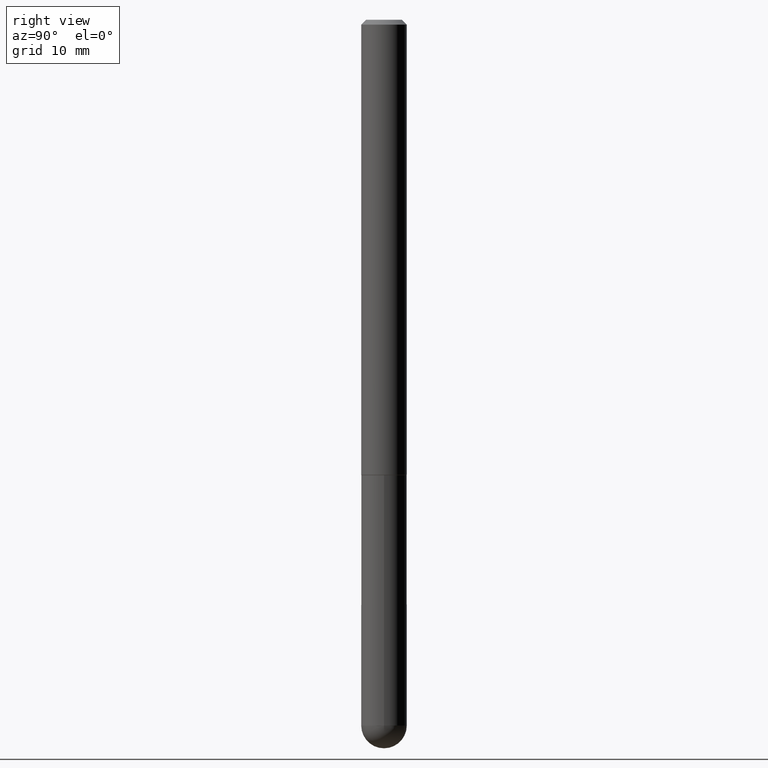
[diagram: clean part render]
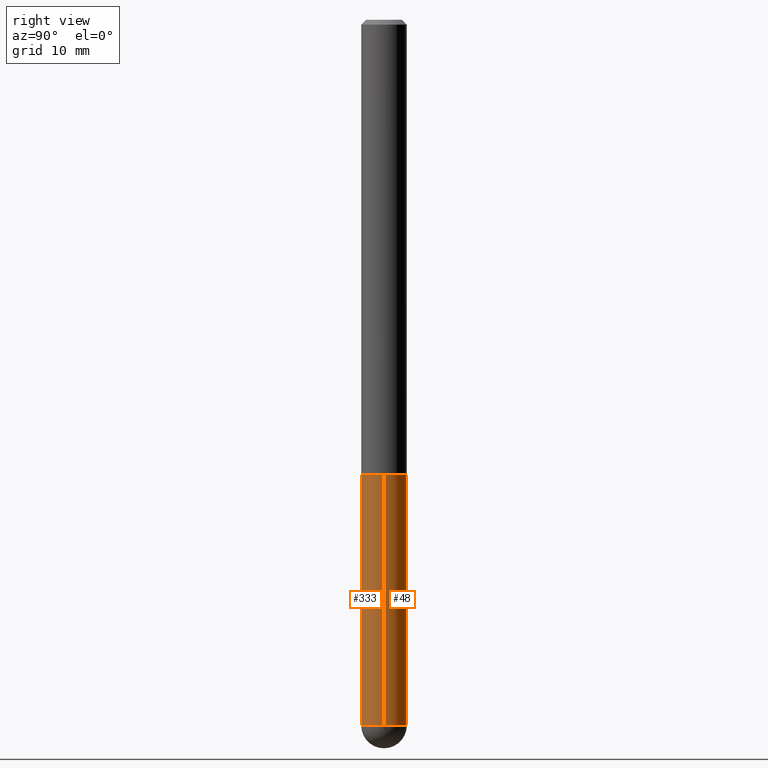
[diagram: same view with one multi-face feature highlighted, each face labeled with its STEP entity id]
A machine part, right view. The highlighted faces form ONE feature: a constant-radius fillet chain: 2 tangent blend faces with common blend radius 2.3812 mm. The faces share edges in the B-rep.
Their STEP definitions:
[1] entity #48 (Cylinder):
#6 = ORIENTED_EDGE ( 'NONE', *, *, #217, .F. ) ;
#9 = ORIENTED_EDGE ( 'NONE', *, *, #269, .T. ) ;
#15 = CARTESIAN_POINT ( 'NONE',  ( 4.585254011597131119E-29, -6.546527510330898707E-15, -1.875000000000000000 ) ) ;
#20 = EDGE_CURVE ( 'NONE', #38, #144, #151, .T. ) ;
#35 = CARTESIAN_POINT ( 'NONE',  ( 7.107143717975553234E-29, -1.014711764101289221E-14, -2.906250000000000000 ) ) ;
#38 = VERTEX_POINT ( 'NONE', #351 ) ;
#48 = ADVANCED_FACE ( 'NONE', ( #141 ), #274, .T. ) ;
#81 = VERTEX_POINT ( 'NONE', #104 ) ;
#83 = CARTESIAN_POINT ( 'NONE',  ( -0.09374999999999998612, 6.661338147750938256E-16, -4.611501647113973295E-30 ) ) ;
#87 = ORIENTED_EDGE ( 'NONE', *, *, #20, .T. ) ;
#91 = VERTEX_POINT ( 'NONE', #288 ) ;
#94 = VECTOR ( 'NONE', #268, 39.37007874015748143 ) ;
#104 = CARTESIAN_POINT ( 'NONE',  ( -0.09375000000000001388, -7.680688760896801533E-15, -1.875000000000000000 ) ) ;
#122 = ORIENTED_EDGE ( 'NONE', *, *, #368, .F. ) ;
#132 = DIRECTION ( 'NONE',  ( 1.000000000000000000, -6.982962677686261189E-15, 0.000000000000000000 ) ) ;
#141 = FACE_OUTER_BOUND ( 'NONE', #310, .T. ) ;
#144 = VERTEX_POINT ( 'NONE', #328 ) ;
#151 = CIRCLE ( 'NONE', #330, 0.09374999999999998612 ) ;
#157 = CARTESIAN_POINT ( 'NONE',  ( 0.000000000000000000, 0.000000000000000000, 0.000000000000000000 ) ) ;
#164 = CIRCLE ( 'NONE', #331, 0.09374999999999998612 ) ;
#174 = DIRECTION ( 'NONE',  ( 1.000000000000000000, -6.982962677686263555E-15, 0.000000000000000000 ) ) ;
#177 = CARTESIAN_POINT ( 'NONE',  ( 7.107143717975553234E-29, -1.014711764101289221E-14, -2.906250000000000000 ) ) ;
#205 = VECTOR ( 'NONE', #208, 39.37007874015748143 ) ;
#206 = LINE ( 'NONE', #271, #94 ) ;
#208 = DIRECTION ( 'NONE',  ( -2.445468806185136877E-29, 3.491481338843145188E-15, 1.000000000000000000 ) ) ;
#211 = AXIS2_PLACEMENT_3D ( 'NONE', #15, #291, #132 ) ;
#212 = DIRECTION ( 'NONE',  ( -2.445468806185136597E-29, 3.491481338843145583E-15, 1.000000000000000000 ) ) ;
#217 = EDGE_CURVE ( 'NONE', #91, #81, #235, .T. ) ;
#223 = DIRECTION ( 'NONE',  ( -2.445468806185136597E-29, 3.491481338843145583E-15, 1.000000000000000000 ) ) ;
#235 = CIRCLE ( 'NONE', #211, 0.09375000000000001388 ) ;
#239 = CARTESIAN_POINT ( 'NONE',  ( 0.09374999999999998612, -9.001475326704983750E-15, -2.906250000000000000 ) ) ;
#240 = ORIENTED_EDGE ( 'NONE', *, *, #322, .T. ) ;
#258 = DIRECTION ( 'NONE',  ( 1.000000000000000000, -6.982962677686266711E-15, 4.876176775795935793E-29 ) ) ;
#268 = DIRECTION ( 'NONE',  ( -2.445468806185136877E-29, 3.491481338843145188E-15, 1.000000000000000000 ) ) ;
#269 = EDGE_CURVE ( 'NONE', #144, #81, #408, .T. ) ;
#271 = CARTESIAN_POINT ( 'NONE',  ( 0.09374999999999998612, -6.546527510330874055E-16, 4.571415727308689105E-30 ) ) ;
#274 = CYLINDRICAL_SURFACE ( 'NONE', #313, 0.09374999999999998612 ) ;
#278 = DIRECTION ( 'NONE',  ( -2.445468806185136597E-29, 3.491481338843145583E-15, 1.000000000000000000 ) ) ;
#285 = DIRECTION ( 'NONE',  ( 1.000000000000000000, -6.982962677686263555E-15, 0.000000000000000000 ) ) ;
#288 = CARTESIAN_POINT ( 'NONE',  ( 0.09375000000000001388, -7.201180261363985422E-15, -1.875000000000000000 ) ) ;
#291 = DIRECTION ( 'NONE',  ( -2.445468806185136597E-29, 3.491481338843145583E-15, 1.000000000000000000 ) ) ;
#295 = VERTEX_POINT ( 'NONE', #239 ) ;
#310 = EDGE_LOOP ( 'NONE', ( #87, #9, #6, #122, #240 ) ) ;
#313 = AXIS2_PLACEMENT_3D ( 'NONE', #157, #223, #258 ) ;
#322 = EDGE_CURVE ( 'NONE', #295, #38, #164, .T. ) ;
#328 = CARTESIAN_POINT ( 'NONE',  ( -0.09374999999999998612, -7.680688760896803110E-15, -2.906250000000000000 ) ) ;
#330 = AXIS2_PLACEMENT_3D ( 'NONE', #35, #278, #285 ) ;
#331 = AXIS2_PLACEMENT_3D ( 'NONE', #177, #212, #174 ) ;
#351 = CARTESIAN_POINT ( 'NONE',  ( 6.546527510331577127E-16, 0.09374999999998974431, -2.906250000000000888 ) ) ;
#368 = EDGE_CURVE ( 'NONE', #295, #91, #206, .T. ) ;
#408 = LINE ( 'NONE', #83, #205 ) ;
[2] entity #333 (Cylinder):
#12 = CARTESIAN_POINT ( 'NONE',  ( 7.107143717975553234E-29, -1.014711764101289221E-14, -2.906250000000000000 ) ) ;
#39 = CARTESIAN_POINT ( 'NONE',  ( 4.585254011597131119E-29, -6.546527510330898707E-15, -1.875000000000000000 ) ) ;
#66 = DIRECTION ( 'NONE',  ( 1.000000000000000000, -6.982962677686263555E-15, 0.000000000000000000 ) ) ;
#78 = CARTESIAN_POINT ( 'NONE',  ( 7.107143717975553234E-29, -1.014711764101289221E-14, -2.906250000000000000 ) ) ;
#81 = VERTEX_POINT ( 'NONE', #104 ) ;
#83 = CARTESIAN_POINT ( 'NONE',  ( -0.09374999999999998612, 6.661338147750938256E-16, -4.611501647113973295E-30 ) ) ;
#85 = AXIS2_PLACEMENT_3D ( 'NONE', #78, #327, #391 ) ;
#91 = VERTEX_POINT ( 'NONE', #288 ) ;
#94 = VECTOR ( 'NONE', #268, 39.37007874015748143 ) ;
#104 = CARTESIAN_POINT ( 'NONE',  ( -0.09375000000000001388, -7.680688760896801533E-15, -1.875000000000000000 ) ) ;
#110 = EDGE_CURVE ( 'NONE', #81, #91, #272, .T. ) ;
#114 = DIRECTION ( 'NONE',  ( 1.000000000000000000, -6.982962677686266711E-15, 4.876176775795935793E-29 ) ) ;
#129 = ORIENTED_EDGE ( 'NONE', *, *, #269, .F. ) ;
#133 = DIRECTION ( 'NONE',  ( -2.445468806185136597E-29, 3.491481338843145583E-15, 1.000000000000000000 ) ) ;
#137 = CIRCLE ( 'NONE', #85, 0.09374999999999998612 ) ;
#144 = VERTEX_POINT ( 'NONE', #328 ) ;
#146 = CARTESIAN_POINT ( 'NONE',  ( -6.661338147750251947E-16, -0.09375000000001050549, -2.906249999999999556 ) ) ;
#160 = EDGE_CURVE ( 'NONE', #144, #292, #402, .T. ) ;
#192 = DIRECTION ( 'NONE',  ( 1.000000000000000000, -6.982962677686261189E-15, 0.000000000000000000 ) ) ;
#197 = ORIENTED_EDGE ( 'NONE', *, *, #110, .F. ) ;
#205 = VECTOR ( 'NONE', #208, 39.37007874015748143 ) ;
#206 = LINE ( 'NONE', #271, #94 ) ;
#208 = DIRECTION ( 'NONE',  ( -2.445468806185136877E-29, 3.491481338843145188E-15, 1.000000000000000000 ) ) ;
#209 = AXIS2_PLACEMENT_3D ( 'NONE', #39, #133, #192 ) ;
#233 = CYLINDRICAL_SURFACE ( 'NONE', #398, 0.09374999999999998612 ) ;
#239 = CARTESIAN_POINT ( 'NONE',  ( 0.09374999999999998612, -9.001475326704983750E-15, -2.906250000000000000 ) ) ;
#241 = EDGE_CURVE ( 'NONE', #292, #295, #137, .T. ) ;
#268 = DIRECTION ( 'NONE',  ( -2.445468806185136877E-29, 3.491481338843145188E-15, 1.000000000000000000 ) ) ;
#269 = EDGE_CURVE ( 'NONE', #144, #81, #408, .T. ) ;
#271 = CARTESIAN_POINT ( 'NONE',  ( 0.09374999999999998612, -6.546527510330874055E-16, 4.571415727308689105E-30 ) ) ;
#272 = CIRCLE ( 'NONE', #209, 0.09375000000000001388 ) ;
#288 = CARTESIAN_POINT ( 'NONE',  ( 0.09375000000000001388, -7.201180261363985422E-15, -1.875000000000000000 ) ) ;
#292 = VERTEX_POINT ( 'NONE', #146 ) ;
#295 = VERTEX_POINT ( 'NONE', #239 ) ;
#302 = CARTESIAN_POINT ( 'NONE',  ( 0.000000000000000000, 0.000000000000000000, 0.000000000000000000 ) ) ;
#311 = ORIENTED_EDGE ( 'NONE', *, *, #368, .T. ) ;
#314 = ORIENTED_EDGE ( 'NONE', *, *, #160, .T. ) ;
#325 = AXIS2_PLACEMENT_3D ( 'NONE', #12, #395, #66 ) ;
#327 = DIRECTION ( 'NONE',  ( -2.445468806185136597E-29, 3.491481338843145583E-15, 1.000000000000000000 ) ) ;
#328 = CARTESIAN_POINT ( 'NONE',  ( -0.09374999999999998612, -7.680688760896803110E-15, -2.906250000000000000 ) ) ;
#333 = ADVANCED_FACE ( 'NONE', ( #334 ), #233, .T. ) ;
#334 = FACE_OUTER_BOUND ( 'NONE', #376, .T. ) ;
#336 = DIRECTION ( 'NONE',  ( -2.445468806185136597E-29, 3.491481338843145583E-15, 1.000000000000000000 ) ) ;
#368 = EDGE_CURVE ( 'NONE', #295, #91, #206, .T. ) ;
#376 = EDGE_LOOP ( 'NONE', ( #129, #314, #406, #311, #197 ) ) ;
#391 = DIRECTION ( 'NONE',  ( 1.000000000000000000, -6.982962677686263555E-15, 0.000000000000000000 ) ) ;
#395 = DIRECTION ( 'NONE',  ( -2.445468806185136597E-29, 3.491481338843145583E-15, 1.000000000000000000 ) ) ;
#398 = AXIS2_PLACEMENT_3D ( 'NONE', #302, #336, #114 ) ;
#402 = CIRCLE ( 'NONE', #325, 0.09374999999999998612 ) ;
#406 = ORIENTED_EDGE ( 'NONE', *, *, #241, .T. ) ;
#408 = LINE ( 'NONE', #83, #205 ) ;